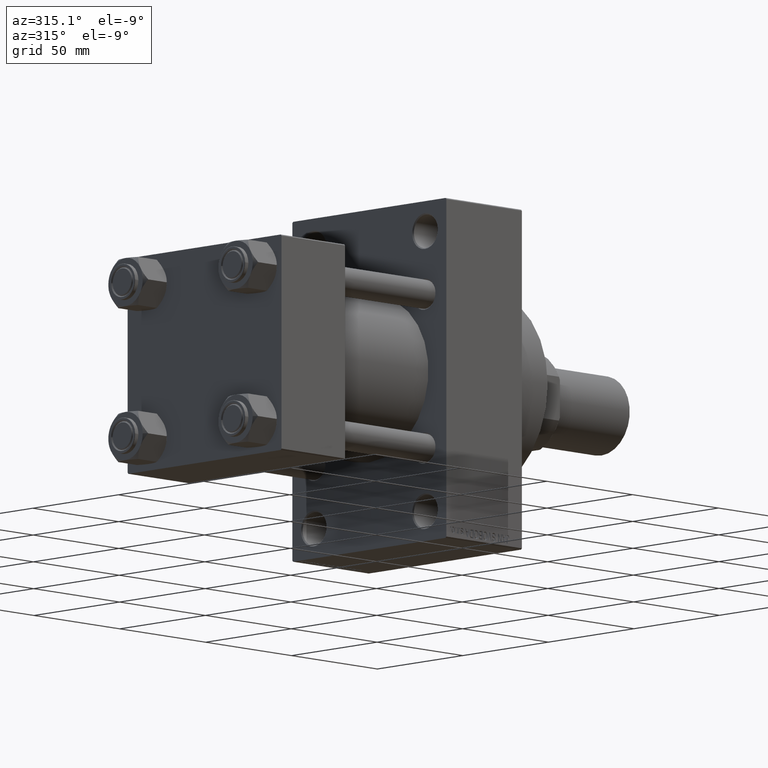
[diagram: clean part render]
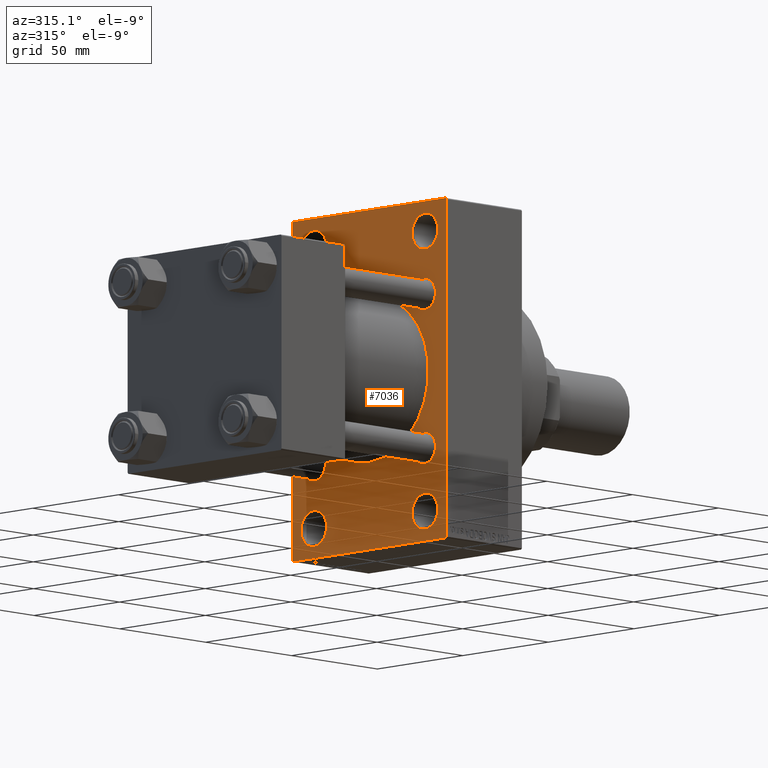
[diagram: same view with one face highlighted and labeled with its STEP entity id]
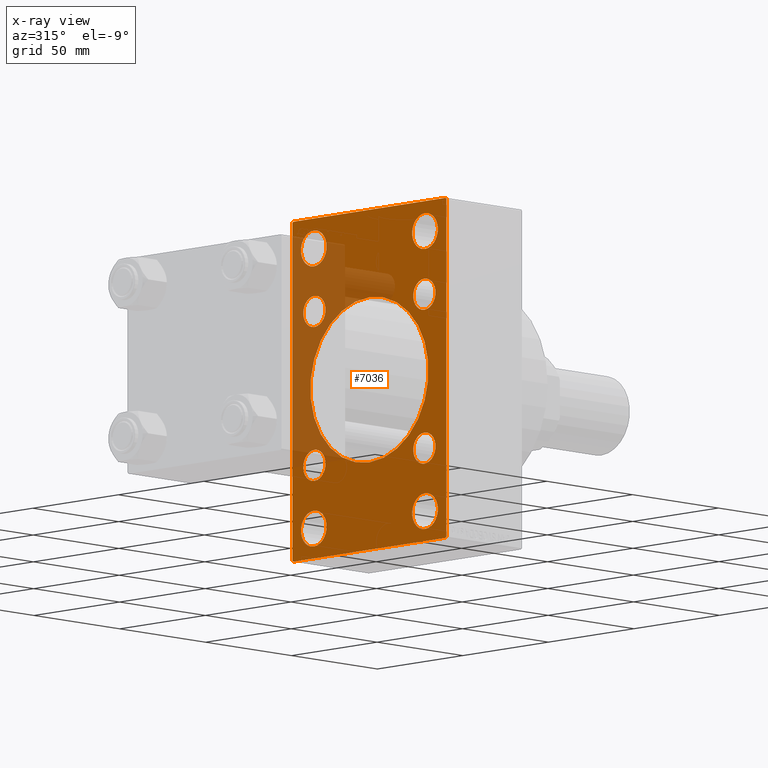
[diagram: x-ray of the same camera — body ghosted, the highlighted face saturated]
A machine part, auxiliary view. The second image highlights one B-rep face of the part: STEP entity #7036.
The next image is the same camera in x-ray: the body ghosted, the highlighted face saturated — about 25% of this face is hidden behind the body in this view.
In plain terms, the highlighted planar face has unit normal (-1, 0, 0).
Its self-contained STEP definition (entity closure, byte-faithful):
#7 = ORIENTED_EDGE ( 'NONE', *, *, #47934, .T. ) ;
#54 = DIRECTION ( 'NONE',  ( 1.000000000000000000, -0.000000000000000000, 0.000000000000000000 ) ) ;
#84 = LINE ( 'NONE', #11666, #41147 ) ;
#708 = EDGE_CURVE ( 'NONE', #36997, #31598, #17152, .T. ) ;
#822 = FACE_BOUND ( 'NONE', #16417, .T. ) ;
#922 = EDGE_CURVE ( 'NONE', #17193, #12805, #43661, .T. ) ;
#1245 = CARTESIAN_POINT ( 'NONE',  ( 96.00000000000000000, -44.49999999999995026, 70.99999999999998579 ) ) ;
#1301 = CARTESIAN_POINT ( 'NONE',  ( 96.00000000000000000, 57.74999999999938893, -57.75000000000100187 ) ) ;
#1655 = ORIENTED_EDGE ( 'NONE', *, *, #2434, .T. ) ;
#2023 = CARTESIAN_POINT ( 'NONE',  ( 96.00000000000000000, 1.622946243093158675E-15, -34.50000000000000000 ) ) ;
#2434 = EDGE_CURVE ( 'NONE', #33723, #36241, #42779, .T. ) ;
#2445 = CARTESIAN_POINT ( 'NONE',  ( 96.00000000000000000, -32.14999999999997726, 38.65000000000002700 ) ) ;
#2583 = DIRECTION ( 'NONE',  ( 0.000000000000000000, 0.000000000000000000, 1.000000000000000000 ) ) ;
#3018 = CARTESIAN_POINT ( 'NONE',  ( 96.00000000000000000, 32.14999999999999147, -32.15000000000000568 ) ) ;
#3200 = DIRECTION ( 'NONE',  ( 1.000000000000000000, -0.000000000000000000, 0.000000000000000000 ) ) ;
#3213 = LINE ( 'NONE', #6263, #31081 ) ;
#3547 = CIRCLE ( 'NONE', #14788, 7.499999999999985789 ) ;
#3995 = CARTESIAN_POINT ( 'NONE',  ( 96.00000000000000000, -32.50000000000000000, -65.99999999999997158 ) ) ;
#4914 = VERTEX_POINT ( 'NONE', #1245 ) ;
#5327 = EDGE_CURVE ( 'NONE', #11232, #4914, #40574, .T. ) ;
#5378 = DIRECTION ( 'NONE',  ( 0.000000000000000000, 0.000000000000000000, 1.000000000000000000 ) ) ;
#5486 = VERTEX_POINT ( 'NONE', #24947 ) ;
#6263 = CARTESIAN_POINT ( 'NONE',  ( 96.00000000000000000, -57.74999999999937472, -57.75000000000096634 ) ) ;
#6818 = VERTEX_POINT ( 'NONE', #20994 ) ;
#6847 = VERTEX_POINT ( 'NONE', #15197 ) ;
#7036 = ADVANCED_FACE ( 'NONE', ( #43304, #822, #19699, #39291, #8889, #15935, #20196, #46580, #12162, #16172 ), #48253, .T. ) ;
#7053 = DIRECTION ( 'NONE',  ( 1.000000000000000000, -0.000000000000000000, 0.000000000000000000 ) ) ;
#7077 = ORIENTED_EDGE ( 'NONE', *, *, #20362, .T. ) ;
#7112 = AXIS2_PLACEMENT_3D ( 'NONE', #9363, #28194, #31455 ) ;
#7183 = CARTESIAN_POINT ( 'NONE',  ( 96.00000000000000000, 44.50000000000002132, 71.00000000000000000 ) ) ;
#7546 = DIRECTION ( 'NONE',  ( 0.000000000000000000, 0.000000000000000000, 1.000000000000000000 ) ) ;
#7650 = EDGE_CURVE ( 'NONE', #11232, #30707, #44352, .T. ) ;
#7808 = CARTESIAN_POINT ( 'NONE',  ( 96.00000000000000000, 32.14999999999999147, 32.15000000000000568 ) ) ;
#7945 = CARTESIAN_POINT ( 'NONE',  ( 96.00000000000000000, -44.99999999999997158, -70.50000000000000000 ) ) ;
#8088 = EDGE_CURVE ( 'NONE', #6818, #29988, #28560, .T. ) ;
#8221 = CARTESIAN_POINT ( 'NONE',  ( 96.00000000000000000, -32.14999999999997726, 32.15000000000001279 ) ) ;
#8889 = FACE_BOUND ( 'NONE', #18393, .T. ) ;
#9121 = EDGE_CURVE ( 'NONE', #13304, #32030, #39825, .T. ) ;
#9363 = CARTESIAN_POINT ( 'NONE',  ( 96.00000000000000000, 32.14999999999999147, -32.15000000000000568 ) ) ;
#9373 = LINE ( 'NONE', #24694, #24290 ) ;
#9684 = EDGE_LOOP ( 'NONE', ( #27520, #12636 ) ) ;
#9786 = ORIENTED_EDGE ( 'NONE', *, *, #708, .T. ) ;
#10029 = DIRECTION ( 'NONE',  ( 0.000000000000000000, -0.7071067811865573427, 0.7071067811865378028 ) ) ;
#10068 = DIRECTION ( 'NONE',  ( -1.000000000000000000, 0.000000000000000000, -0.000000000000000000 ) ) ;
#10845 = CARTESIAN_POINT ( 'NONE',  ( 96.00000000000000000, 32.50000000000000711, 65.99999999999998579 ) ) ;
#11232 = VERTEX_POINT ( 'NONE', #42543 ) ;
#11293 = DIRECTION ( 'NONE',  ( 1.000000000000000000, -0.000000000000000000, 0.000000000000000000 ) ) ;
#11615 = DIRECTION ( 'NONE',  ( 1.000000000000000000, 0.000000000000000000, 0.000000000000000000 ) ) ;
#11666 = CARTESIAN_POINT ( 'NONE',  ( 96.00000000000000000, 57.75000000000000000, 57.75000000000000000 ) ) ;
#12017 = AXIS2_PLACEMENT_3D ( 'NONE', #34952, #11615, #31180 ) ;
#12125 = DIRECTION ( 'NONE',  ( 0.000000000000000000, 0.000000000000000000, 1.000000000000000000 ) ) ;
#12162 = FACE_BOUND ( 'NONE', #26991, .T. ) ;
#12582 = EDGE_LOOP ( 'NONE', ( #22954, #17135 ) ) ;
#12596 = EDGE_CURVE ( 'NONE', #36241, #48998, #48372, .T. ) ;
#12636 = ORIENTED_EDGE ( 'NONE', *, *, #13823, .T. ) ;
#12674 = CIRCLE ( 'NONE', #30316, 7.500000000000007105 ) ;
#12805 = VERTEX_POINT ( 'NONE', #47014 ) ;
#13163 = CARTESIAN_POINT ( 'NONE',  ( 96.00000000000000000, 32.50000000000000711, -58.50000000000000000 ) ) ;
#13173 = AXIS2_PLACEMENT_3D ( 'NONE', #14104, #29429, #14858 ) ;
#13304 = VERTEX_POINT ( 'NONE', #2445 ) ;
#13688 = EDGE_CURVE ( 'NONE', #12805, #17193, #25504, .T. ) ;
#13823 = EDGE_CURVE ( 'NONE', #40241, #25506, #12674, .T. ) ;
#13886 = DIRECTION ( 'NONE',  ( 0.000000000000000000, 0.000000000000000000, 1.000000000000000000 ) ) ;
#13991 = AXIS2_PLACEMENT_3D ( 'NONE', #33615, #3200, #49208 ) ;
#14046 = CARTESIAN_POINT ( 'NONE',  ( 96.00000000000000000, 32.14999999999999147, 25.65000000000000213 ) ) ;
#14104 = CARTESIAN_POINT ( 'NONE',  ( 96.00000000000000000, 32.50000000000000711, 58.50000000000000711 ) ) ;
#14351 = CARTESIAN_POINT ( 'NONE',  ( 96.00000000000000000, -32.14999999999997726, 32.15000000000001279 ) ) ;
#14627 = ORIENTED_EDGE ( 'NONE', *, *, #45987, .T. ) ;
#14788 = AXIS2_PLACEMENT_3D ( 'NONE', #48986, #11293, #38155 ) ;
#14858 = DIRECTION ( 'NONE',  ( 0.000000000000000000, 0.000000000000000000, 1.000000000000000000 ) ) ;
#15197 = CARTESIAN_POINT ( 'NONE',  ( 96.00000000000000000, 32.14999999999999147, -25.64999999999999858 ) ) ;
#15202 = ORIENTED_EDGE ( 'NONE', *, *, #9121, .T. ) ;
#15207 = EDGE_CURVE ( 'NONE', #6847, #48693, #28774, .T. ) ;
#15796 = VECTOR ( 'NONE', #40096, 1000.000000000000000 ) ;
#15832 = CARTESIAN_POINT ( 'NONE',  ( 96.00000000000000000, 32.50000000000000711, -66.00000000000000000 ) ) ;
#15935 = FACE_BOUND ( 'NONE', #47081, .T. ) ;
#16146 = EDGE_CURVE ( 'NONE', #18319, #4914, #9373, .T. ) ;
#16172 = FACE_OUTER_BOUND ( 'NONE', #24680, .T. ) ;
#16417 = EDGE_LOOP ( 'NONE', ( #7077, #20930 ) ) ;
#16460 = VERTEX_POINT ( 'NONE', #24879 ) ;
#16567 = DIRECTION ( 'NONE',  ( 0.000000000000000000, 0.000000000000000000, 1.000000000000000000 ) ) ;
#16672 = DIRECTION ( 'NONE',  ( -0.000000000000000000, 0.000000000000000000, 1.000000000000000000 ) ) ;
#16813 = CIRCLE ( 'NONE', #12017, 34.50000000000000000 ) ;
#17135 = ORIENTED_EDGE ( 'NONE', *, *, #46762, .T. ) ;
#17147 = AXIS2_PLACEMENT_3D ( 'NONE', #8221, #42400, #46662 ) ;
#17152 = CIRCLE ( 'NONE', #35630, 34.50000000000000000 ) ;
#17193 = VERTEX_POINT ( 'NONE', #17710 ) ;
#17325 = ORIENTED_EDGE ( 'NONE', *, *, #17419, .T. ) ;
#17348 = EDGE_CURVE ( 'NONE', #18319, #21276, #84, .T. ) ;
#17419 = EDGE_CURVE ( 'NONE', #43817, #27296, #18696, .T. ) ;
#17710 = CARTESIAN_POINT ( 'NONE',  ( 96.00000000000000000, -32.50000000000000000, 51.00000000000002842 ) ) ;
#18319 = VERTEX_POINT ( 'NONE', #7183 ) ;
#18393 = EDGE_LOOP ( 'NONE', ( #15202, #31462 ) ) ;
#18434 = CIRCLE ( 'NONE', #48095, 6.500000000000005329 ) ;
#18462 = CARTESIAN_POINT ( 'NONE',  ( 96.00000000000000000, 32.50000000000000711, -50.99999999999999289 ) ) ;
#18696 = CIRCLE ( 'NONE', #29906, 6.499999999999999112 ) ;
#19699 = FACE_BOUND ( 'NONE', #9684, .T. ) ;
#19713 = CARTESIAN_POINT ( 'NONE',  ( 96.00000000000000000, -32.50000000000000000, 58.50000000000000711 ) ) ;
#20196 = FACE_BOUND ( 'NONE', #12582, .T. ) ;
#20352 = EDGE_LOOP ( 'NONE', ( #7, #30648 ) ) ;
#20362 = EDGE_CURVE ( 'NONE', #36169, #25846, #3547, .T. ) ;
#20593 = ORIENTED_EDGE ( 'NONE', *, *, #12596, .T. ) ;
#20930 = ORIENTED_EDGE ( 'NONE', *, *, #32166, .T. ) ;
#20949 = DIRECTION ( 'NONE',  ( 1.000000000000000000, -0.000000000000000000, 0.000000000000000000 ) ) ;
#20994 = CARTESIAN_POINT ( 'NONE',  ( 96.00000000000000000, 32.50000000000000711, 51.00000000000002842 ) ) ;
#21276 = VERTEX_POINT ( 'NONE', #44232 ) ;
#21322 = VECTOR ( 'NONE', #29996, 1000.000000000000000 ) ;
#21937 = EDGE_CURVE ( 'NONE', #21276, #33723, #48888, .T. ) ;
#22006 = CIRCLE ( 'NONE', #29197, 6.500000000000005329 ) ;
#22954 = ORIENTED_EDGE ( 'NONE', *, *, #15207, .T. ) ;
#24290 = VECTOR ( 'NONE', #44031, 1000.000000000000000 ) ;
#24600 = DIRECTION ( 'NONE',  ( 0.000000000000000000, 0.000000000000000000, -1.000000000000000000 ) ) ;
#24680 = EDGE_LOOP ( 'NONE', ( #20593, #39211, #26440, #28215, #26669, #34865, #38797, #1655 ) ) ;
#24694 = CARTESIAN_POINT ( 'NONE',  ( 96.00000000000000000, 45.00000000000002132, 71.00000000000000000 ) ) ;
#24780 = CARTESIAN_POINT ( 'NONE',  ( 96.00000000000000000, -44.99999999999997158, 70.99999999999998579 ) ) ;
#24879 = CARTESIAN_POINT ( 'NONE',  ( 96.00000000000000000, -32.14999999999997726, -38.65000000000001990 ) ) ;
#24947 = CARTESIAN_POINT ( 'NONE',  ( 96.00000000000000000, -32.14999999999997726, -25.65000000000000568 ) ) ;
#25299 = CARTESIAN_POINT ( 'NONE',  ( 96.00000000000000000, -2.602085213965210642E-15, 34.50000000000000000 ) ) ;
#25504 = CIRCLE ( 'NONE', #45564, 7.499999999999978684 ) ;
#25506 = VERTEX_POINT ( 'NONE', #18462 ) ;
#25846 = VERTEX_POINT ( 'NONE', #3995 ) ;
#25900 = ORIENTED_EDGE ( 'NONE', *, *, #922, .T. ) ;
#26241 = AXIS2_PLACEMENT_3D ( 'NONE', #48500, #10068, #16672 ) ;
#26270 = AXIS2_PLACEMENT_3D ( 'NONE', #40521, #44289, #13886 ) ;
#26440 = ORIENTED_EDGE ( 'NONE', *, *, #7650, .F. ) ;
#26444 = ORIENTED_EDGE ( 'NONE', *, *, #13688, .T. ) ;
#26669 = ORIENTED_EDGE ( 'NONE', *, *, #16146, .F. ) ;
#26991 = EDGE_LOOP ( 'NONE', ( #39747, #9786 ) ) ;
#27296 = VERTEX_POINT ( 'NONE', #14046 ) ;
#27316 = CIRCLE ( 'NONE', #29713, 7.500000000000007105 ) ;
#27520 = ORIENTED_EDGE ( 'NONE', *, *, #40519, .T. ) ;
#28109 = CIRCLE ( 'NONE', #38558, 6.499999999999999112 ) ;
#28194 = DIRECTION ( 'NONE',  ( 1.000000000000000000, -0.000000000000000000, 0.000000000000000000 ) ) ;
#28215 = ORIENTED_EDGE ( 'NONE', *, *, #5327, .T. ) ;
#28560 = CIRCLE ( 'NONE', #26270, 7.499999999999978684 ) ;
#28774 = CIRCLE ( 'NONE', #7112, 6.500000000000005329 ) ;
#29197 = AXIS2_PLACEMENT_3D ( 'NONE', #3018, #7053, #37943 ) ;
#29212 = DIRECTION ( 'NONE',  ( 0.000000000000000000, 0.000000000000000000, 1.000000000000000000 ) ) ;
#29429 = DIRECTION ( 'NONE',  ( 1.000000000000000000, -0.000000000000000000, 0.000000000000000000 ) ) ;
#29713 = AXIS2_PLACEMENT_3D ( 'NONE', #34487, #54, #12125 ) ;
#29906 = AXIS2_PLACEMENT_3D ( 'NONE', #38549, #31233, #34755 ) ;
#29988 = VERTEX_POINT ( 'NONE', #10845 ) ;
#29996 = DIRECTION ( 'NONE',  ( -0.000000000000000000, 0.7071067811865426878, 0.7071067811865524577 ) ) ;
#30255 = DIRECTION ( 'NONE',  ( 0.000000000000000000, 0.7071067811865474617, -0.7071067811865474617 ) ) ;
#30299 = EDGE_CURVE ( 'NONE', #48998, #30707, #3213, .T. ) ;
#30316 = AXIS2_PLACEMENT_3D ( 'NONE', #13163, #20949, #29212 ) ;
#30581 = CARTESIAN_POINT ( 'NONE',  ( 96.00000000000000000, 44.50000000000004263, -70.99999999999998579 ) ) ;
#30648 = ORIENTED_EDGE ( 'NONE', *, *, #37719, .T. ) ;
#30707 = VERTEX_POINT ( 'NONE', #7945 ) ;
#31081 = VECTOR ( 'NONE', #10029, 1000.000000000000000 ) ;
#31180 = DIRECTION ( 'NONE',  ( 0.000000000000000000, 0.000000000000000000, -1.000000000000000000 ) ) ;
#31233 = DIRECTION ( 'NONE',  ( 1.000000000000000000, -0.000000000000000000, 0.000000000000000000 ) ) ;
#31455 = DIRECTION ( 'NONE',  ( 0.000000000000000000, 0.000000000000000000, 1.000000000000000000 ) ) ;
#31462 = ORIENTED_EDGE ( 'NONE', *, *, #45650, .T. ) ;
#31598 = VERTEX_POINT ( 'NONE', #25299 ) ;
#32030 = VERTEX_POINT ( 'NONE', #42337 ) ;
#32166 = EDGE_CURVE ( 'NONE', #25846, #36169, #37594, .T. ) ;
#32179 = CARTESIAN_POINT ( 'NONE',  ( 96.00000000000000000, -32.50000000000000000, -51.00000000000000711 ) ) ;
#32413 = CIRCLE ( 'NONE', #13173, 7.499999999999978684 ) ;
#33212 = AXIS2_PLACEMENT_3D ( 'NONE', #35348, #42630, #45909 ) ;
#33538 = CARTESIAN_POINT ( 'NONE',  ( 96.00000000000000000, 45.00000000000002132, 71.00000000000000000 ) ) ;
#33615 = CARTESIAN_POINT ( 'NONE',  ( 96.00000000000000000, -32.14999999999997726, -32.15000000000001279 ) ) ;
#33723 = VERTEX_POINT ( 'NONE', #48916 ) ;
#34487 = CARTESIAN_POINT ( 'NONE',  ( 96.00000000000000000, 32.50000000000000711, -58.50000000000000000 ) ) ;
#34755 = DIRECTION ( 'NONE',  ( 0.000000000000000000, 0.000000000000000000, 1.000000000000000000 ) ) ;
#34865 = ORIENTED_EDGE ( 'NONE', *, *, #17348, .T. ) ;
#34952 = CARTESIAN_POINT ( 'NONE',  ( 96.00000000000000000, -2.602085213965210642E-15, 0.000000000000000000 ) ) ;
#35034 = DIRECTION ( 'NONE',  ( 1.000000000000000000, -0.000000000000000000, 0.000000000000000000 ) ) ;
#35348 = CARTESIAN_POINT ( 'NONE',  ( 96.00000000000000000, -32.50000000000000000, 58.50000000000000711 ) ) ;
#35630 = AXIS2_PLACEMENT_3D ( 'NONE', #36158, #40405, #24600 ) ;
#35722 = VECTOR ( 'NONE', #45602, 1000.000000000000000 ) ;
#36158 = CARTESIAN_POINT ( 'NONE',  ( 96.00000000000000000, -2.602085213965210642E-15, 0.000000000000000000 ) ) ;
#36169 = VERTEX_POINT ( 'NONE', #32179 ) ;
#36241 = VERTEX_POINT ( 'NONE', #30581 ) ;
#36828 = DIRECTION ( 'NONE',  ( 0.000000000000000000, -1.000000000000000000, -1.541976423090495633E-16 ) ) ;
#36917 = EDGE_LOOP ( 'NONE', ( #26444, #25900 ) ) ;
#36986 = EDGE_LOOP ( 'NONE', ( #14627, #48622 ) ) ;
#36997 = VERTEX_POINT ( 'NONE', #2023 ) ;
#37202 = EDGE_CURVE ( 'NONE', #27296, #43817, #28109, .T. ) ;
#37276 = CARTESIAN_POINT ( 'NONE',  ( 96.00000000000000000, -32.14999999999997726, -32.15000000000001279 ) ) ;
#37594 = CIRCLE ( 'NONE', #39166, 7.499999999999985789 ) ;
#37719 = EDGE_CURVE ( 'NONE', #16460, #5486, #18434, .T. ) ;
#37943 = DIRECTION ( 'NONE',  ( 0.000000000000000000, 0.000000000000000000, 1.000000000000000000 ) ) ;
#38155 = DIRECTION ( 'NONE',  ( 0.000000000000000000, 0.000000000000000000, 1.000000000000000000 ) ) ;
#38341 = EDGE_CURVE ( 'NONE', #31598, #36997, #16813, .T. ) ;
#38523 = CARTESIAN_POINT ( 'NONE',  ( 96.00000000000000000, 32.14999999999999147, -38.65000000000001279 ) ) ;
#38549 = CARTESIAN_POINT ( 'NONE',  ( 96.00000000000000000, 32.14999999999999147, 32.15000000000000568 ) ) ;
#38558 = AXIS2_PLACEMENT_3D ( 'NONE', #7808, #46718, #16567 ) ;
#38797 = ORIENTED_EDGE ( 'NONE', *, *, #21937, .T. ) ;
#38803 = DIRECTION ( 'NONE',  ( 0.000000000000000000, 0.000000000000000000, 1.000000000000000000 ) ) ;
#38887 = VECTOR ( 'NONE', #43035, 999.9999999999998863 ) ;
#38988 = AXIS2_PLACEMENT_3D ( 'NONE', #14351, #49029, #7546 ) ;
#39166 = AXIS2_PLACEMENT_3D ( 'NONE', #40044, #47586, #5378 ) ;
#39211 = ORIENTED_EDGE ( 'NONE', *, *, #30299, .T. ) ;
#39291 = FACE_BOUND ( 'NONE', #36986, .T. ) ;
#39747 = ORIENTED_EDGE ( 'NONE', *, *, #38341, .T. ) ;
#39825 = CIRCLE ( 'NONE', #38988, 6.500000000000005329 ) ;
#40044 = CARTESIAN_POINT ( 'NONE',  ( 96.00000000000000000, -32.50000000000000000, -58.49999999999999289 ) ) ;
#40096 = DIRECTION ( 'NONE',  ( 0.000000000000000000, 0.000000000000000000, -1.000000000000000000 ) ) ;
#40241 = VERTEX_POINT ( 'NONE', #15832 ) ;
#40242 = ORIENTED_EDGE ( 'NONE', *, *, #37202, .T. ) ;
#40405 = DIRECTION ( 'NONE',  ( 1.000000000000000000, 0.000000000000000000, 0.000000000000000000 ) ) ;
#40519 = EDGE_CURVE ( 'NONE', #25506, #40241, #27316, .T. ) ;
#40521 = CARTESIAN_POINT ( 'NONE',  ( 96.00000000000000000, 32.50000000000000711, 58.50000000000000711 ) ) ;
#40574 = LINE ( 'NONE', #48617, #21322 ) ;
#40843 = CARTESIAN_POINT ( 'NONE',  ( 96.00000000000000000, 45.00000000000001421, -70.99999999999998579 ) ) ;
#41147 = VECTOR ( 'NONE', #30255, 1000.000000000000114 ) ;
#42337 = CARTESIAN_POINT ( 'NONE',  ( 96.00000000000000000, -32.14999999999997726, 25.65000000000000213 ) ) ;
#42400 = DIRECTION ( 'NONE',  ( 1.000000000000000000, -0.000000000000000000, 0.000000000000000000 ) ) ;
#42543 = CARTESIAN_POINT ( 'NONE',  ( 96.00000000000000000, -44.99999999999997158, 70.49999999999998579 ) ) ;
#42630 = DIRECTION ( 'NONE',  ( 1.000000000000000000, -0.000000000000000000, 0.000000000000000000 ) ) ;
#42779 = LINE ( 'NONE', #1301, #38887 ) ;
#42786 = CIRCLE ( 'NONE', #17147, 6.500000000000005329 ) ;
#43035 = DIRECTION ( 'NONE',  ( -0.000000000000000000, -0.7071067811865574537, -0.7071067811865376918 ) ) ;
#43304 = FACE_BOUND ( 'NONE', #36917, .T. ) ;
#43661 = CIRCLE ( 'NONE', #33212, 7.499999999999978684 ) ;
#43817 = VERTEX_POINT ( 'NONE', #47332 ) ;
#43943 = VECTOR ( 'NONE', #36828, 1000.000000000000000 ) ;
#44031 = DIRECTION ( 'NONE',  ( 0.000000000000000000, -1.000000000000000000, -1.541976423090495387E-16 ) ) ;
#44232 = CARTESIAN_POINT ( 'NONE',  ( 96.00000000000000000, 45.00000000000002132, 70.50000000000000000 ) ) ;
#44289 = DIRECTION ( 'NONE',  ( 1.000000000000000000, -0.000000000000000000, 0.000000000000000000 ) ) ;
#44352 = LINE ( 'NONE', #24780, #15796 ) ;
#44826 = DIRECTION ( 'NONE',  ( 1.000000000000000000, -0.000000000000000000, 0.000000000000000000 ) ) ;
#45510 = CARTESIAN_POINT ( 'NONE',  ( 96.00000000000000000, -44.49999999999994316, -71.00000000000000000 ) ) ;
#45564 = AXIS2_PLACEMENT_3D ( 'NONE', #19713, #35034, #38803 ) ;
#45602 = DIRECTION ( 'NONE',  ( 0.000000000000000000, -4.886545002751570165E-17, -1.000000000000000000 ) ) ;
#45650 = EDGE_CURVE ( 'NONE', #32030, #13304, #42786, .T. ) ;
#45909 = DIRECTION ( 'NONE',  ( 0.000000000000000000, 0.000000000000000000, 1.000000000000000000 ) ) ;
#45987 = EDGE_CURVE ( 'NONE', #29988, #6818, #32413, .T. ) ;
#46093 = CIRCLE ( 'NONE', #13991, 6.500000000000005329 ) ;
#46580 = FACE_BOUND ( 'NONE', #20352, .T. ) ;
#46662 = DIRECTION ( 'NONE',  ( 0.000000000000000000, 0.000000000000000000, 1.000000000000000000 ) ) ;
#46718 = DIRECTION ( 'NONE',  ( 1.000000000000000000, -0.000000000000000000, 0.000000000000000000 ) ) ;
#46762 = EDGE_CURVE ( 'NONE', #48693, #6847, #22006, .T. ) ;
#47014 = CARTESIAN_POINT ( 'NONE',  ( 96.00000000000000000, -32.50000000000000000, 65.99999999999998579 ) ) ;
#47081 = EDGE_LOOP ( 'NONE', ( #17325, #40242 ) ) ;
#47332 = CARTESIAN_POINT ( 'NONE',  ( 96.00000000000000000, 32.14999999999999147, 38.65000000000001279 ) ) ;
#47586 = DIRECTION ( 'NONE',  ( 1.000000000000000000, -0.000000000000000000, 0.000000000000000000 ) ) ;
#47934 = EDGE_CURVE ( 'NONE', #5486, #16460, #46093, .T. ) ;
#48095 = AXIS2_PLACEMENT_3D ( 'NONE', #37276, #44826, #2583 ) ;
#48253 = PLANE ( 'NONE',  #26241 ) ;
#48372 = LINE ( 'NONE', #40843, #43943 ) ;
#48500 = CARTESIAN_POINT ( 'NONE',  ( 96.00000000000000000, 0.000000000000000000, 0.000000000000000000 ) ) ;
#48617 = CARTESIAN_POINT ( 'NONE',  ( 96.00000000000000000, -57.75000000000028422, 57.74999999999948841 ) ) ;
#48622 = ORIENTED_EDGE ( 'NONE', *, *, #8088, .T. ) ;
#48693 = VERTEX_POINT ( 'NONE', #38523 ) ;
#48888 = LINE ( 'NONE', #33538, #35722 ) ;
#48916 = CARTESIAN_POINT ( 'NONE',  ( 96.00000000000000000, 45.00000000000001421, -70.50000000000001421 ) ) ;
#48986 = CARTESIAN_POINT ( 'NONE',  ( 96.00000000000000000, -32.50000000000000000, -58.49999999999999289 ) ) ;
#48998 = VERTEX_POINT ( 'NONE', #45510 ) ;
#49029 = DIRECTION ( 'NONE',  ( 1.000000000000000000, -0.000000000000000000, 0.000000000000000000 ) ) ;
#49208 = DIRECTION ( 'NONE',  ( 0.000000000000000000, 0.000000000000000000, 1.000000000000000000 ) ) ;